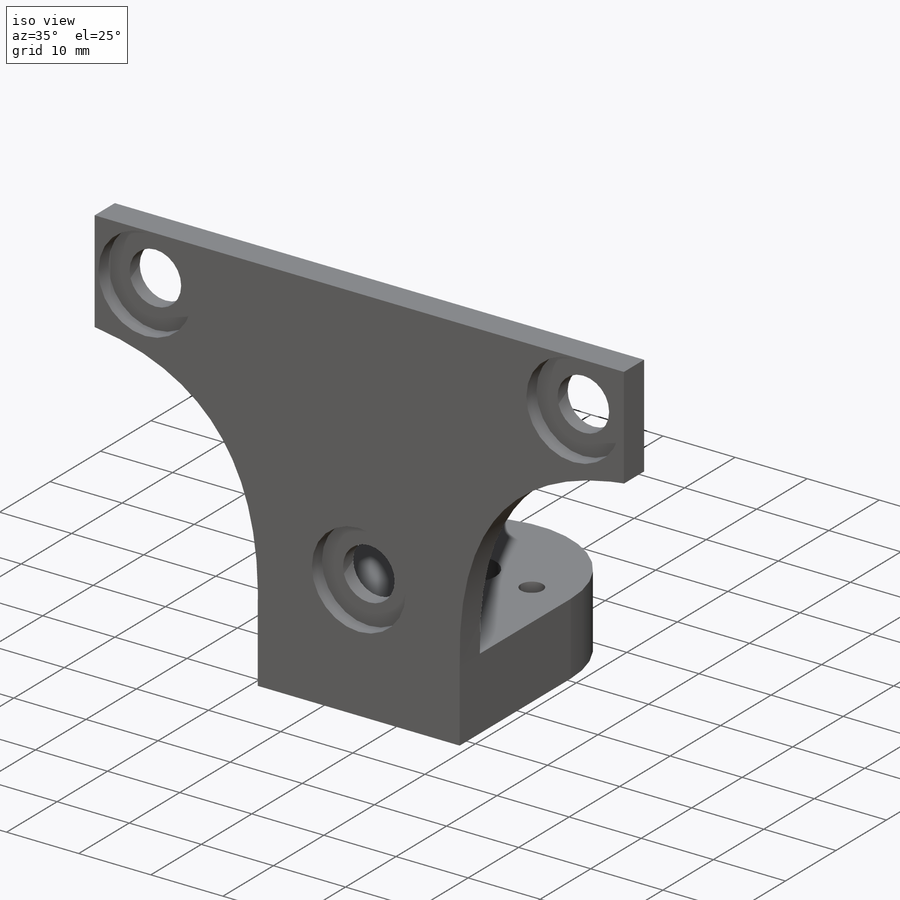
[diagram: iso view]
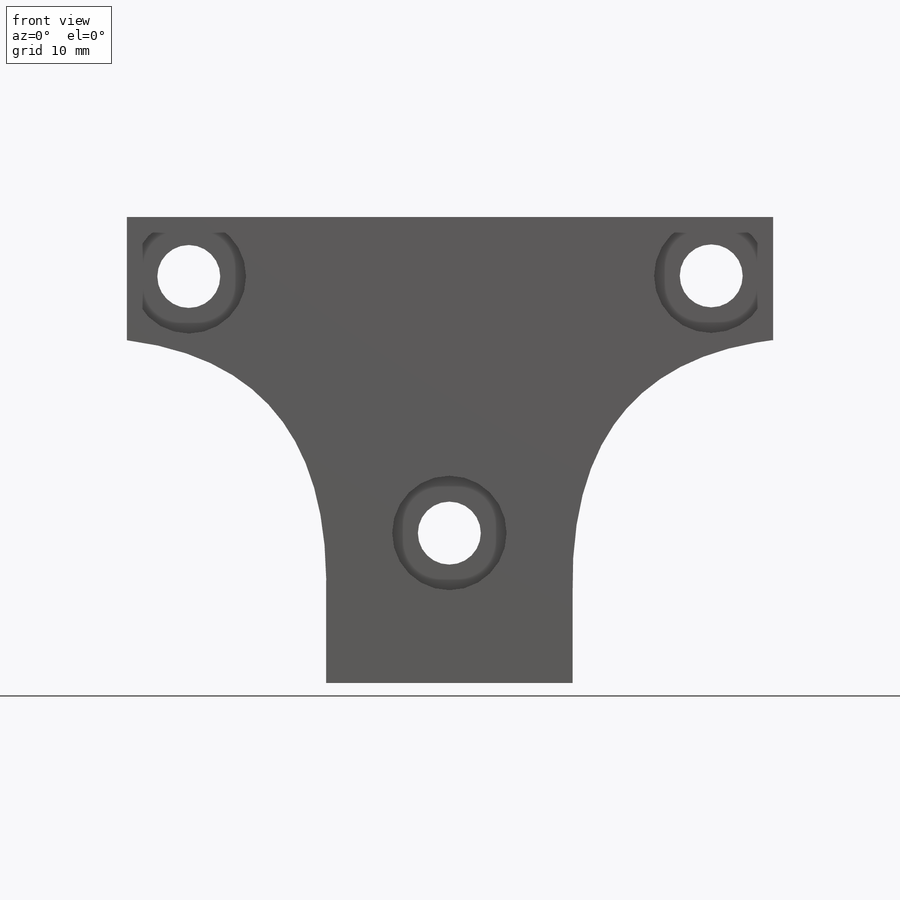
[diagram: front view]
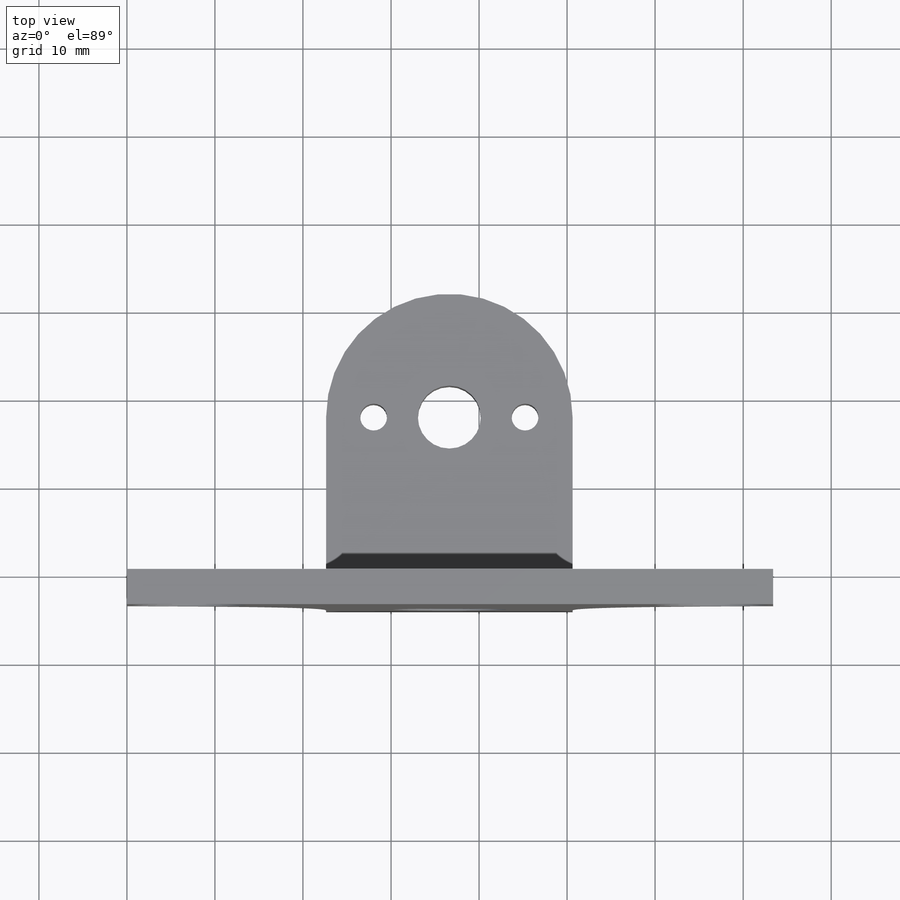
[diagram: top view]
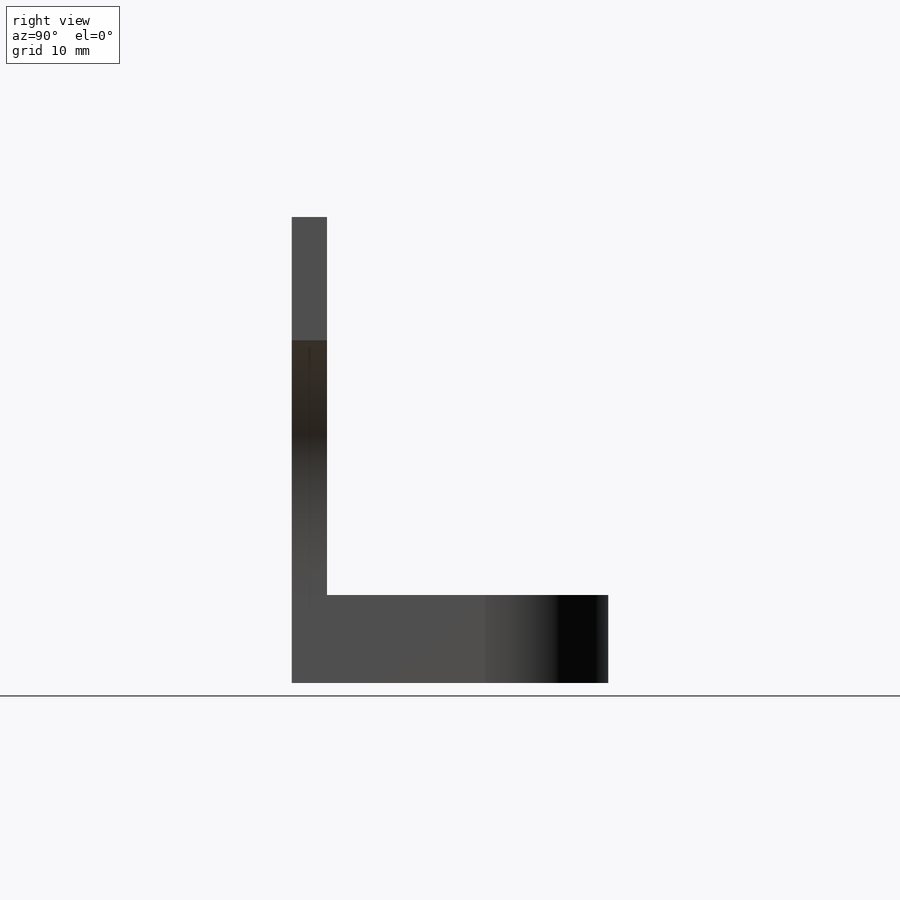
[diagram: right view]
SOLIDWORKS PART (.sldprt)
format: sldprt  version: not decoded by parser v0  size: 214,016 bytes
history: native  units: mm
features: sketch x4, plane x3, extrude x2, material x1, cut_extrude x1 (+9 scaffold rows collapsed)
feature tree (20):
  scaffold x9  (default folders/planes/origin — collapsed)
  material  "Matériau <non spécifié>"
  plane  "Plan de face"
  plane  "Plan de dessus"
  plane  "Plan de droite"
  sketch  "Esquisse1"  dims[c1.D9=7.0mm c1.D10=7.0mm c1.D11=7.0mm c1.D5=7.0mm c1.D6=7.0mm c1.D2=13.0mm c1.D3=13.0mm c1.D4=7.0mm c1.D1=13.0mm c2.D2=13.0mm c2.D3=13.0mm c2.D1=73.4mm c3.D2=54.0mm c3.D3=8.0mm c3.D4=3.5mm c3.D5=3.5mm c3.D6=3.5mm c3.D7=3.5mm c3.D8=3.5mm c3.D9=29.5mm c3.D10=29.5mm c3.D11=3.5mm c3.D12=3.5mm c3.D13=3.5mm c3.D14=3.5mm c4.D9=29.5mm c4.D7=21.0mm c4.D8=11.0mm c5.D9=21.0mm c5.D7=17.0mm c6.D9=17.0mm c6.D12=52.4mm c6.D3=0.5mm c6.D4=0.5mm c7.D3=18.35mm c7.D4=18.5mm c7.D2=0.5mm c8.D3=0.5mm c8.D2=73.4mm c8.D1=3.45mm c9.D2=3.45mm c9.D3=7.15mm c9.D4=7.15mm c9.D5=73.4mm c9.D6=~52.500002mm c9.D1=3.45mm c10.D6=3.45mm c10.D7=7.15mm c10.D5=14.0mm c10.D8=14.0mm c10.D9=14.0mm]
  extrude  "Boss.-Extru.1"  Depth=4mm
  sketch  "Esquisse17"  dims[D1=13.0mm D2=13.0mm D3=13.0mm]
  cut_extrude  "Enlèv. mat.-Extru.9"  Depth=2mm
  sketch  "Esquisse18"  dims[c1.D2=28.0mm c1.D1=7.15mm c1.D6=3.05mm c2.D1=36.0mm c2.D2=3.5mm c2.D3=3.5mm c2.D4=1.525mm c2.D5=1.525mm c3.D2=1.525mm]
  extrude  "Boss.-Extru.6"  Depth=10mm
  sketch  "Esquisse22"
decode coverage: 6 of 7 modeling features carry decoded parameters
note: ~ marks probable driven/reference dimensions
note: suppression state not decoded; provenance and decode notes live in map.json
